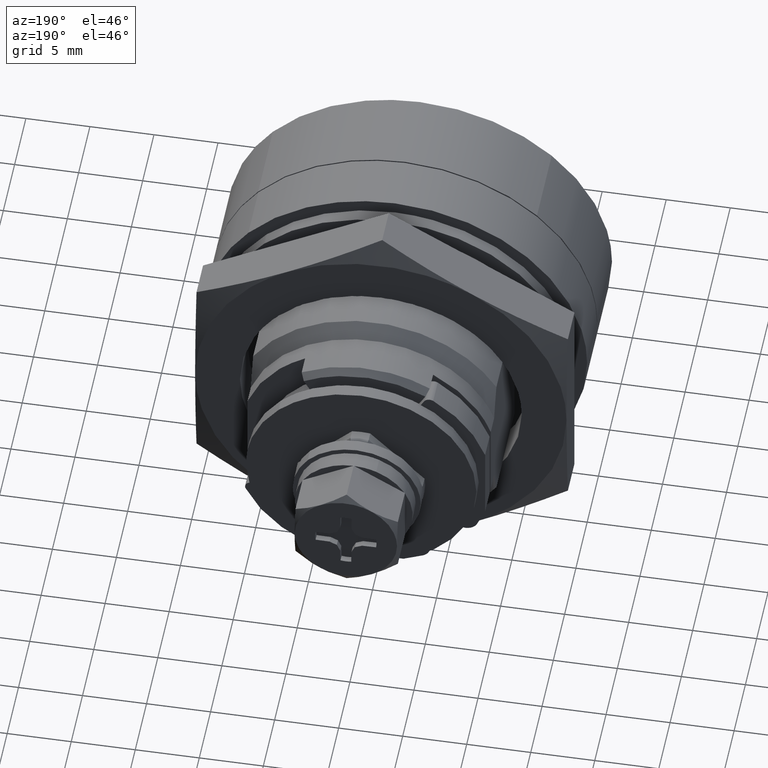
[diagram: clean part render]
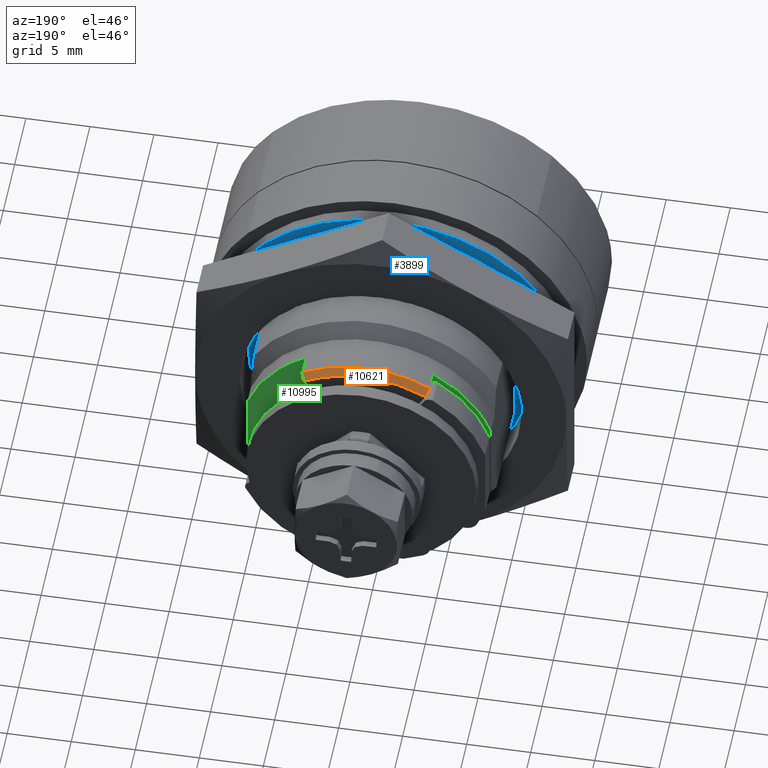
[diagram: same view with three faces highlighted in distinct colors, each labeled with its STEP entity id]
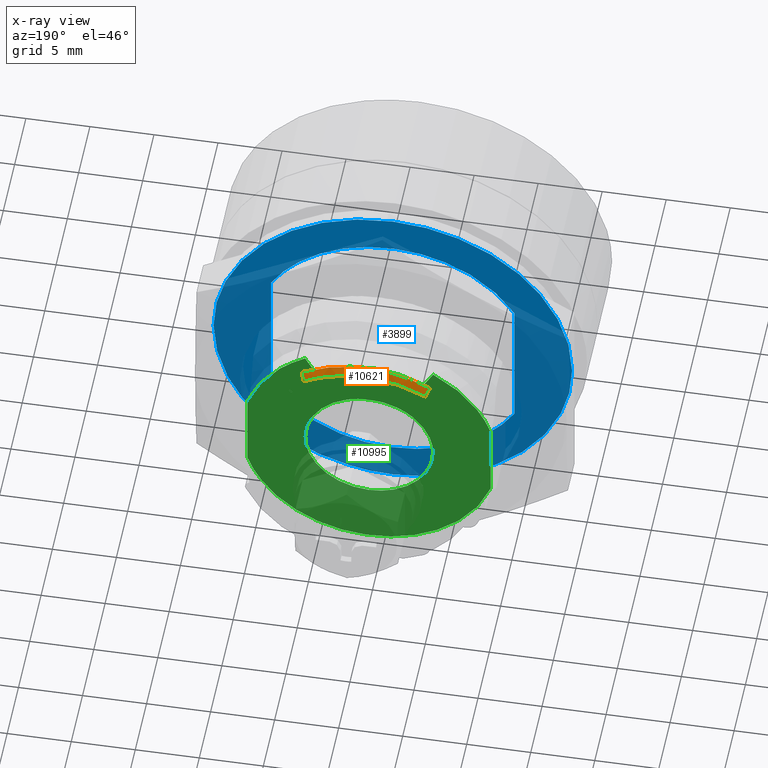
[diagram: x-ray of the same camera — body ghosted, the three highlighted faces saturated]
A machine part, auxiliary view with three faces highlighted in distinct colors.
The next image is the same camera in x-ray (body ghosted, the three faces saturated) — at least one of them is partly hidden behind the body in this view.
Their STEP definitions:

[orange] entity #10621 — the highlighted face is a freeform B-spline surface patch.
#10563=CARTESIAN_POINT('',(13.512500020831270,4.957205511022440,8.089423303067742));
#10564=CARTESIAN_POINT('',(12.987186645397371,5.231681017260369,8.537326572630690));
#10565=CARTESIAN_POINT('',(13.512500020831270,-0.133347215498947,11.208918362807330));
#10566=CARTESIAN_POINT('',(12.987186645397378,-0.140730517320528,11.829544950744896));
#10567=CARTESIAN_POINT('',(13.512500020831263,-5.148247420598412,7.969203495395789));
#10568=CARTESIAN_POINT('',(12.987186645397379,-5.433300726107910,8.410450314566027));
#10576=(BOUNDED_SURFACE()B_SPLINE_SURFACE(1,2,((#10563,#10565,#10567),(#10564,#10566,#10568)),.UNSPECIFIED.,.F.,.F.,.U.)B_SPLINE_SURFACE_WITH_KNOTS((2,2),(3,3),(0.0,1.0),(0.0,11.553177452123631),.UNSPECIFIED.)GEOMETRIC_REPRESENTATION_ITEM()RATIONAL_B_SPLINE_SURFACE(((1.0,0.842884117493694,0.991792997132270),(1.0,0.842884117493694,0.991792997132270)))REPRESENTATION_ITEM('')SURFACE());
#10577=CARTESIAN_POINT('',(12.999999166749420,4.999999999999941,8.660255000000001));
#10578=VERTEX_POINT('',#10577);
#10579=CARTESIAN_POINT('',(13.500000000000000,4.749999712459190,8.227241501964370));
#10580=VERTEX_POINT('',#10579);
#10581=CARTESIAN_POINT('',(12.999999166749420,4.999999999999941,8.660255000000001));
#10582=CARTESIAN_POINT('',(13.500000000000000,4.749999712459190,8.227241501964370));
#10583=QUASI_UNIFORM_CURVE('',1,(#10581,#10582),.UNSPECIFIED.,.F.,.U.);
#10584=EDGE_CURVE('',#10578,#10580,#10583,.T.);
#10585=ORIENTED_EDGE('',*,*,#10584,.F.);
#10586=CARTESIAN_POINT('',(13.0,-5.0,8.660255000000001));
#10587=VERTEX_POINT('',#10586);
#10588=CARTESIAN_POINT('',(13.0,-5.0,8.660255000000001));
#10589=CARTESIAN_POINT('',(12.999999946871130,-4.362390484779434,9.028532227890770));
#10590=CARTESIAN_POINT('',(12.999999861017249,-3.332041040728109,9.479967984549850));
#10591=CARTESIAN_POINT('',(12.999999721920400,-1.662713859330451,9.898128785327540));
#10592=CARTESIAN_POINT('',(12.999999597039841,-0.163996937141938,10.045742347520040));
#10593=CARTESIAN_POINT('',(12.999999449247300,1.609687027579386,9.922226109286934));
#10594=CARTESIAN_POINT('',(12.999999305282490,3.337443057604586,9.489431728402424));
#10595=CARTESIAN_POINT('',(12.999999210040761,4.480447110213335,8.960272841745853));
#10596=CARTESIAN_POINT('',(12.999999166749420,4.999999999999941,8.660255000000001));
#10597=B_SPLINE_CURVE_WITH_KNOTS('',3,(#10588,#10589,#10590,#10591,#10592,#10593,#10594,#10595,#10596),.UNSPECIFIED.,.F.,.U.,(4,1,1,1,1,1,4),(0.000000039140858,2.208933845172972,3.354315387199089,5.154216497384646,6.708627440352501,8.672137927015514,10.472004548909220),.UNSPECIFIED.);
#10598=EDGE_CURVE('',#10587,#10578,#10597,.T.);
#10599=ORIENTED_EDGE('',*,*,#10598,.F.);
#10600=CARTESIAN_POINT('',(13.500000000000000,-4.749999712459190,8.227241501964370));
#10601=VERTEX_POINT('',#10600);
#10602=CARTESIAN_POINT('',(13.500000000000000,-4.749999712459190,8.227241501964370));
#10603=CARTESIAN_POINT('',(13.0,-5.0,8.660255000000001));
#10604=QUASI_UNIFORM_CURVE('',1,(#10602,#10603),.UNSPECIFIED.,.F.,.U.);
#10605=EDGE_CURVE('',#10601,#10587,#10604,.T.);
#10606=ORIENTED_EDGE('',*,*,#10605,.F.);
#10607=CARTESIAN_POINT('',(13.500000000000000,4.749999712459190,8.227241501964370));
#10608=CARTESIAN_POINT('',(13.500000000000020,4.278859603590554,8.499301563133113));
#10609=CARTESIAN_POINT('',(13.499999999999970,3.219009399061166,8.995235362815221));
#10610=CARTESIAN_POINT('',(13.500000000000011,1.631451222690420,9.406784932495414));
#10611=CARTESIAN_POINT('',(13.500000000000000,0.207445134248038,9.523442174947810));
#10612=CARTESIAN_POINT('',(13.499999999999970,-1.140267584007029,9.462773706457563));
#10613=CARTESIAN_POINT('',(13.500000000000041,-2.801925865674454,9.153513680000804));
#10614=CARTESIAN_POINT('',(13.499999999999989,-4.054557876971956,8.628983088385827));
#10615=CARTESIAN_POINT('',(13.500000000000000,-4.749999712459190,8.227241501964370));
#10616=B_SPLINE_CURVE_WITH_KNOTS('',3,(#10607,#10608,#10609,#10610,#10611,#10612,#10613,#10614,#10615),.UNSPECIFIED.,.F.,.U.,(4,1,1,1,1,1,4),(0.000000039644926,1.632149737307779,3.497496127390782,4.896507153602273,5.906854646231986,7.539025593919737,9.948403816216571),.UNSPECIFIED.);
#10617=EDGE_CURVE('',#10580,#10601,#10616,.T.);
#10618=ORIENTED_EDGE('',*,*,#10617,.F.);
#10619=EDGE_LOOP('',(#10585,#10599,#10606,#10618));
#10620=FACE_OUTER_BOUND('',#10619,.T.);
#10621=ADVANCED_FACE('',(#10620),#10576,.T.);

[blue] entity #3899 — the highlighted face is a freeform B-spline surface patch.
#3572=CARTESIAN_POINT('',(1.0,-10.033113322143191,9.764047662325478));
#3573=VERTEX_POINT('',#3572);
#3579=CARTESIAN_POINT('',(1.0,0.0,14.0));
#3580=VERTEX_POINT('',#3579);
#3581=CARTESIAN_POINT('',(1.0,0.0,14.0));
#3582=CARTESIAN_POINT('',(0.999999999999998,-0.932162213923800,14.000120978008010));
#3583=CARTESIAN_POINT('',(1.000000000000003,-2.679908853745925,13.824800352395700));
#3584=CARTESIAN_POINT('',(0.999999999999999,-4.839282767041753,13.187115654609279));
#3585=CARTESIAN_POINT('',(0.999999999999991,-6.723956443759519,12.328264080142530));
#3586=CARTESIAN_POINT('',(1.000000000000026,-8.405853788298620,11.269603941702030));
#3587=CARTESIAN_POINT('',(0.999999999999967,-9.525236263493881,10.285969117467090));
#3588=CARTESIAN_POINT('',(1.0,-10.033113322143191,9.764047662325478));
#3589=B_SPLINE_CURVE_WITH_KNOTS('',3,(#3581,#3582,#3583,#3584,#3585,#3586,#3587,#3588),.UNSPECIFIED.,.F.,.U.,(4,1,1,1,1,4),(0.000000017273669,2.796464169346068,5.243384892846337,6.728980375647280,9.001119998070468,11.185856314690289),.UNSPECIFIED.);
#3590=EDGE_CURVE('',#3580,#3573,#3589,.T.);
#3592=CARTESIAN_POINT('',(1.0,13.999999999999920,0.000001473811498));
#3593=VERTEX_POINT('',#3592);
#3594=CARTESIAN_POINT('',(1.0,13.999999999999920,0.000001473811498));
#3595=CARTESIAN_POINT('',(1.000000000000003,14.000155339966581,0.944948539295219));
#3596=CARTESIAN_POINT('',(1.0,13.854448597072890,2.376592979026281));
#3597=CARTESIAN_POINT('',(1.000000000000000,13.312738428001561,4.457748100641723));
#3598=CARTESIAN_POINT('',(1.000000000000001,12.506951795350471,6.455269624414581));
#3599=CARTESIAN_POINT('',(1.000000000000005,11.250409042083760,8.452991470220155));
#3600=CARTESIAN_POINT('',(0.999999999999983,9.553592419132720,10.325136401241179));
#3601=CARTESIAN_POINT('',(1.000000000000028,7.766501483451125,11.728635705671349));
#3602=CARTESIAN_POINT('',(0.999999999999945,5.646458972697118,12.878586513292030));
#3603=CARTESIAN_POINT('',(1.000000000000036,3.121017344988079,13.756102524001751));
#3604=CARTESIAN_POINT('',(0.999999999999985,1.145402188599353,14.000315658379661));
#3605=CARTESIAN_POINT('',(1.0,0.0,14.0));
#3606=B_SPLINE_CURVE_WITH_KNOTS('',3,(#3594,#3595,#3596,#3597,#3598,#3599,#3600,#3601,#3602,#3603,#3604,#3605),.UNSPECIFIED.,.F.,.U.,(4,1,1,1,1,1,1,1,1,4),(0.000000065779709,2.834798876056681,4.295146155699893,6.442734124503716,9.277545508540845,11.339174796376790,14.002181175104839,16.063868589363569,18.555061566931641,21.991182242194309),.UNSPECIFIED.);
#3607=EDGE_CURVE('',#3593,#3580,#3606,.T.);
#3609=CARTESIAN_POINT('',(1.0,0.0,-14.0));
#3610=VERTEX_POINT('',#3609);
#3611=CARTESIAN_POINT('',(1.0,0.0,-14.0));
#3612=CARTESIAN_POINT('',(0.999999999999998,0.916302865983891,-14.000132009149871));
#3613=CARTESIAN_POINT('',(0.999999999999999,2.405228618996038,-13.853257125724481));
#3614=CARTESIAN_POINT('',(1.000000000000001,4.485798400080290,-13.304875845449850));
#3615=CARTESIAN_POINT('',(0.999999999999998,6.397732804719263,-12.519842230548671));
#3616=CARTESIAN_POINT('',(1.000000000000004,8.457521633252872,-11.259442074479260));
#3617=CARTESIAN_POINT('',(0.999999999999996,10.333552362244600,-9.559031294484635));
#3618=CARTESIAN_POINT('',(0.999999999999994,11.923179755528039,-7.483055039293303));
#3619=CARTESIAN_POINT('',(1.000000000000048,13.036151863318221,-5.305294948117187));
#3620=CARTESIAN_POINT('',(0.999999999999919,13.811607625990071,-2.748826651464827));
#3621=CARTESIAN_POINT('',(1.000000000000035,14.000170598258441,-1.002205044830865));
#3622=CARTESIAN_POINT('',(1.0,13.999999999999920,0.000001473811498));
#3623=B_SPLINE_CURVE_WITH_KNOTS('',3,(#3611,#3612,#3613,#3614,#3615,#3616,#3617,#3618,#3619,#3620,#3621,#3622),.UNSPECIFIED.,.F.,.U.,(4,1,1,1,1,1,1,1,1,4),(0.000000065638847,2.748877042713527,4.466952348833591,6.442734611169824,8.933943460286340,11.682779526148719,14.002182233378459,16.751099028347099,18.984593652064110,21.991183903526029),.UNSPECIFIED.);
#3624=EDGE_CURVE('',#3610,#3593,#3623,.T.);
#3626=CARTESIAN_POINT('',(1.0,-10.321882965782081,-9.458263176615411));
#3627=VERTEX_POINT('',#3626);
#3628=CARTESIAN_POINT('',(1.0,-10.321882965782081,-9.458263176615411));
#3629=CARTESIAN_POINT('',(1.000000000000000,-9.893081925880184,-9.926244097425666));
#3630=CARTESIAN_POINT('',(1.0,-8.905884203918697,-10.866443792743210));
#3631=CARTESIAN_POINT('',(1.000000000000005,-7.148200552689125,-12.108891673782651));
#3632=CARTESIAN_POINT('',(0.999999999999991,-5.212155774224623,-13.052142152881080));
#3633=CARTESIAN_POINT('',(0.999999999999995,-2.810837763881463,-13.798094617602050));
#3634=CARTESIAN_POINT('',(1.000000000000012,-1.088127899340507,-14.000218741464140));
#3635=CARTESIAN_POINT('',(1.0,0.0,-14.0));
#3636=B_SPLINE_CURVE_WITH_KNOTS('',3,(#3628,#3629,#3630,#3631,#3632,#3633,#3634,#3635),.UNSPECIFIED.,.F.,.U.,(4,1,1,1,1,4),(0.000000019495022,1.904180724488391,4.080396362522972,6.437953872810390,8.342141425290411,11.606459934353270),.UNSPECIFIED.);
#3637=EDGE_CURVE('',#3627,#3610,#3636,.T.);
#3731=CARTESIAN_POINT('',(1.0,-13.999999999999920,-0.000001473811388));
#3732=VERTEX_POINT('',#3731);
#3733=CARTESIAN_POINT('',(1.0,-13.999999999999920,-0.000001473811388));
#3734=CARTESIAN_POINT('',(1.0,-14.000055068961890,-0.784266284237521));
#3735=CARTESIAN_POINT('',(0.999999999999998,-13.872396584747980,-2.298677145018665));
#3736=CARTESIAN_POINT('',(1.000000000000002,-13.257498388614749,-4.745375654985548));
#3737=CARTESIAN_POINT('',(1.000000000000000,-12.130685225316990,-7.190974200629345));
#3738=CARTESIAN_POINT('',(0.999999999999999,-10.961437705674181,-8.760490726269543));
#3739=CARTESIAN_POINT('',(1.0,-10.321882965782081,-9.458263176615411));
#3740=B_SPLINE_CURVE_WITH_KNOTS('',3,(#3733,#3734,#3735,#3736,#3737,#3738,#3739),.UNSPECIFIED.,.F.,.U.,(4,1,1,1,4),(0.000000014346174,2.352788267116984,4.543323295025794,7.545149396132681,10.384722272376511),.UNSPECIFIED.);
#3741=EDGE_CURVE('',#3732,#3627,#3740,.T.);
#3743=CARTESIAN_POINT('',(1.0,-10.033113322143191,9.764047662325478));
#3744=CARTESIAN_POINT('',(1.0,-10.798710300092189,8.977756204627070));
#3745=CARTESIAN_POINT('',(0.999999999999999,-11.763899244442941,7.718444312120602));
#3746=CARTESIAN_POINT('',(1.000000000000004,-12.960251207521351,5.450628293587454));
#3747=CARTESIAN_POINT('',(0.999999999999985,-13.772954973551510,3.067068397658900));
#3748=CARTESIAN_POINT('',(1.000000000000017,-14.000201132656400,1.041152008421458));
#3749=CARTESIAN_POINT('',(1.0,-13.999999999999920,-0.000001473811388));
#3750=B_SPLINE_CURVE_WITH_KNOTS('',3,(#3743,#3744,#3745,#3746,#3747,#3748,#3749),.UNSPECIFIED.,.F.,.U.,(4,1,1,1,4),(0.000000016450036,3.292252207306952,4.727343621253853,7.681909845666260,10.805327973691670),.UNSPECIFIED.);
#3751=EDGE_CURVE('',#3573,#3732,#3750,.T.);
#3829=CARTESIAN_POINT('',(1.0,-15.398599945730480,15.398599945730570));
#3830=CARTESIAN_POINT('',(1.0,15.398600696749011,15.398599945730570));
#3831=CARTESIAN_POINT('',(1.0,-15.398599945730480,-15.398600696749090));
#3832=CARTESIAN_POINT('',(1.0,15.398600696749011,-15.398600696749090));
#3833=B_SPLINE_SURFACE_WITH_KNOTS('',1,1,((#3829,#3831),(#3830,#3832)),.UNSPECIFIED.,.F.,.F.,.U.,(2,2),(2,2),(0.0,30.797200642479488),(0.0,30.797200642479659),.UNSPECIFIED.);
#3834=ORIENTED_EDGE('',*,*,#3590,.T.);
#3835=ORIENTED_EDGE('',*,*,#3751,.T.);
#3836=ORIENTED_EDGE('',*,*,#3741,.T.);
#3837=ORIENTED_EDGE('',*,*,#3637,.T.);
#3838=ORIENTED_EDGE('',*,*,#3624,.T.);
#3839=ORIENTED_EDGE('',*,*,#3607,.T.);
#3840=EDGE_LOOP('',(#3834,#3835,#3836,#3837,#3838,#3839));
#3841=FACE_OUTER_BOUND('',#3840,.T.);
#3842=CARTESIAN_POINT('',(1.0,-9.500000000000000,-5.545268000000000));
#3843=VERTEX_POINT('',#3842);
#3844=CARTESIAN_POINT('',(1.0,9.500000000000000,-5.545268000000000));
#3845=VERTEX_POINT('',#3844);
#3846=CARTESIAN_POINT('',(1.0,-9.500000000000000,-5.545268000000000));
#3847=CARTESIAN_POINT('',(1.000000000000002,-9.033572679256190,-6.344920513536313));
#3848=CARTESIAN_POINT('',(0.999999999999999,-8.190229111248303,-7.442982485043294));
#3849=CARTESIAN_POINT('',(1.000000000000002,-6.672739764181601,-8.797964107195107));
#3850=CARTESIAN_POINT('',(1.000000000000004,-5.065924989507838,-9.846808998697759));
#3851=CARTESIAN_POINT('',(0.999999999999995,-3.363175178633680,-10.524303953498020));
#3852=CARTESIAN_POINT('',(1.000000000000015,-1.437435172313721,-10.954699779109330));
#3853=CARTESIAN_POINT('',(0.999999999999995,0.271736032139213,-11.059231490898441));
#3854=CARTESIAN_POINT('',(1.000000000000014,2.322348962783952,-10.807410651046990));
#3855=CARTESIAN_POINT('',(0.999999999999963,4.103246268114671,-10.269832411741660));
#3856=CARTESIAN_POINT('',(1.000000000000006,5.677345185783908,-9.465484814688580));
#3857=CARTESIAN_POINT('',(1.0,6.850332449605255,-8.637057434659097));
#3858=CARTESIAN_POINT('',(1.0,8.188756297359911,-7.442123533487865));
#3859=CARTESIAN_POINT('',(0.999999999999976,9.018515831745710,-6.370706162900042));
#3860=CARTESIAN_POINT('',(1.0,9.500000000000000,-5.545268000000000));
#3861=B_SPLINE_CURVE_WITH_KNOTS('',3,(#3846,#3847,#3848,#3849,#3850,#3851,#3852,#3853,#3854,#3855,#3856,#3857,#3858,#3859,#3860),.UNSPECIFIED.,.F.,.U.,(4,1,1,1,1,1,1,1,1,1,1,1,4),(0.000000131422464,2.777123955576471,4.120887988879950,6.091774590902070,8.510564310352153,9.585596158418252,12.004362057062650,13.616887964241570,15.766921438861059,17.558632834067460,18.902422542297010,20.067019612163559,22.933723611059929),.UNSPECIFIED.);
#3862=EDGE_CURVE('',#3843,#3845,#3861,.T.);
#3863=ORIENTED_EDGE('',*,*,#3862,.F.);
#3864=CARTESIAN_POINT('',(1.0,-9.500000000000000,5.545268999999901));
#3865=VERTEX_POINT('',#3864);
#3866=CARTESIAN_POINT('',(1.0,-9.500000000000000,-5.545268000000000));
#3867=CARTESIAN_POINT('',(1.0,-9.500000000000000,5.545268999999901));
#3868=QUASI_UNIFORM_CURVE('',1,(#3866,#3867),.UNSPECIFIED.,.F.,.U.);
#3869=EDGE_CURVE('',#3843,#3865,#3868,.T.);
#3870=ORIENTED_EDGE('',*,*,#3869,.T.);
#3871=CARTESIAN_POINT('',(1.0,9.500000000000000,5.545268999999910));
#3872=VERTEX_POINT('',#3871);
#3873=CARTESIAN_POINT('',(1.0,9.500000000000000,5.545268999999910));
#3874=CARTESIAN_POINT('',(0.999999999999999,9.183916405467025,6.086860852209282));
#3875=CARTESIAN_POINT('',(1.000000000000002,8.458768706887819,7.115775892904964));
#3876=CARTESIAN_POINT('',(0.999999999999997,7.018460482167646,8.557687515758241));
#3877=CARTESIAN_POINT('',(0.999999999999998,5.376576303898013,9.667768541831501));
#3878=CARTESIAN_POINT('',(1.000000000000002,3.564589094972722,10.457986393426880));
#3879=CARTESIAN_POINT('',(1.000000000000000,2.053925525182413,10.841128158831570));
#3880=CARTESIAN_POINT('',(0.999999999999994,0.420265101245397,11.028197610685600));
#3881=CARTESIAN_POINT('',(1.000000000000015,-1.198232573568793,10.988687662882819));
#3882=CARTESIAN_POINT('',(0.999999999999980,-2.873446277989908,10.656957111285120));
#3883=CARTESIAN_POINT('',(1.000000000000045,-4.397611498655573,10.121289372532280));
#3884=CARTESIAN_POINT('',(0.999999999999990,-5.675158153964046,9.461955251623937));
#3885=CARTESIAN_POINT('',(0.999999999999999,-6.924770298360112,8.587079877636453));
#3886=CARTESIAN_POINT('',(1.000000000000003,-8.250121984553752,7.374269517798248));
#3887=CARTESIAN_POINT('',(0.999999999999994,-9.078649444527079,6.267471065343213));
#3888=CARTESIAN_POINT('',(1.0,-9.500000000000000,5.545268999999901));
#3889=B_SPLINE_CURVE_WITH_KNOTS('',3,(#3873,#3874,#3875,#3876,#3877,#3878,#3879,#3880,#3881,#3882,#3883,#3884,#3885,#3886,#3887,#3888),.UNSPECIFIED.,.F.,.U.,(4,1,1,1,1,1,1,1,1,1,1,1,1,4),(0.000000131407123,1.881242699182391,3.762560071170800,6.091774228631120,7.793894760612051,9.675202439289436,10.750228603420570,12.721008469334530,14.512719771118180,15.856517586993551,17.558631789910599,18.812823857593511,20.425379118581589,22.933722247267841),.UNSPECIFIED.);
#3890=EDGE_CURVE('',#3872,#3865,#3889,.T.);
#3891=ORIENTED_EDGE('',*,*,#3890,.F.);
#3892=CARTESIAN_POINT('',(1.0,9.500000000000000,5.545268999999910));
#3893=CARTESIAN_POINT('',(1.0,9.500000000000000,-5.545268000000000));
#3894=QUASI_UNIFORM_CURVE('',1,(#3892,#3893),.UNSPECIFIED.,.F.,.U.);
#3895=EDGE_CURVE('',#3872,#3845,#3894,.T.);
#3896=ORIENTED_EDGE('',*,*,#3895,.T.);
#3897=EDGE_LOOP('',(#3863,#3870,#3891,#3896));
#3898=FACE_BOUND('',#3897,.T.);
#3899=ADVANCED_FACE('',(#3841,#3898),#3833,.F.);

[green] entity #10995 — the highlighted face is a freeform B-spline surface patch.
#9948=CARTESIAN_POINT('',(11.500000000000000,3.441772646466265,3.626871657323020));
#9949=VERTEX_POINT('',#9948);
#9955=CARTESIAN_POINT('',(11.500000000000000,0.0,5.0));
#9956=VERTEX_POINT('',#9955);
#9957=CARTESIAN_POINT('',(11.500000000000000,0.0,5.0));
#9958=CARTESIAN_POINT('',(11.499999999999980,0.474525336135953,5.000158191363772));
#9959=CARTESIAN_POINT('',(11.500000000000020,1.403697243309633,4.866762912747528));
#9960=CARTESIAN_POINT('',(11.499999999999970,2.569279003248723,4.344676622595108));
#9961=CARTESIAN_POINT('',(11.500000000000030,3.197981108416826,3.858244867072004));
#9962=CARTESIAN_POINT('',(11.500000000000000,3.441772646466265,3.626871657323020));
#9963=B_SPLINE_CURVE_WITH_KNOTS('',3,(#9957,#9958,#9959,#9960,#9961,#9962),.UNSPECIFIED.,.F.,.U.,(4,1,1,4),(0.000000029659713,1.423542959464170,2.787769562536685,3.796113233299189),.UNSPECIFIED.);
#9964=EDGE_CURVE('',#9956,#9949,#9963,.T.);
#9966=CARTESIAN_POINT('',(11.500000000000000,-4.999999999999853,0.000001214201519));
#9967=VERTEX_POINT('',#9966);
#9968=CARTESIAN_POINT('',(11.500000000000000,-4.999999999999853,0.000001214201519));
#9969=CARTESIAN_POINT('',(11.499999999999970,-5.000255371998605,0.511358127883209));
#9970=CARTESIAN_POINT('',(11.500000000000069,-4.870196465784423,1.349772966180596));
#9971=CARTESIAN_POINT('',(11.499999999999959,-4.416663923956669,2.407574985893156));
#9972=CARTESIAN_POINT('',(11.500000000000050,-3.875437852428514,3.206950443594423));
#9973=CARTESIAN_POINT('',(11.499999999999680,-3.163365157033864,3.919057008471555));
#9974=CARTESIAN_POINT('',(11.500000000001100,-2.300917131812858,4.480138684149350));
#9975=CARTESIAN_POINT('',(11.499999999998670,-1.227115608042208,4.894346298579282));
#9976=CARTESIAN_POINT('',(11.500000000000560,-0.449975730570964,5.000150065023252));
#9977=CARTESIAN_POINT('',(11.500000000000000,0.0,5.0));
#9978=B_SPLINE_CURVE_WITH_KNOTS('',3,(#9968,#9969,#9970,#9971,#9972,#9973,#9974,#9975,#9976,#9977),.UNSPECIFIED.,.F.,.U.,(4,1,1,1,1,1,1,4),(0.000000118224075,1.533981919634321,2.515752772949222,3.436167582433113,4.417863431335558,5.522361858085223,6.504132696661494,7.854030230036708),.UNSPECIFIED.);
#9979=EDGE_CURVE('',#9967,#9956,#9978,.T.);
#9981=CARTESIAN_POINT('',(11.500000000000000,0.0,-5.0));
#9982=VERTEX_POINT('',#9981);
#9983=CARTESIAN_POINT('',(11.500000000000000,0.0,-5.0));
#9984=CARTESIAN_POINT('',(11.500000000000020,-0.531828993373877,-5.000320084578477));
#9985=CARTESIAN_POINT('',(11.499999999999980,-1.308827591731734,-4.874770661308419));
#9986=CARTESIAN_POINT('',(11.500000000000060,-2.464702977217022,-4.396064548255171));
#9987=CARTESIAN_POINT('',(11.499999999999931,-3.346672427658147,-3.782978780020194));
#9988=CARTESIAN_POINT('',(11.500000000000041,-4.144757483362538,-2.869029530255042));
#9989=CARTESIAN_POINT('',(11.499999999999829,-4.635688426667257,-1.963993734352304));
#9990=CARTESIAN_POINT('',(11.500000000000149,-4.933581270623139,-0.981716848642209));
#9991=CARTESIAN_POINT('',(11.499999999999851,-5.000054829736798,-0.347700986638291));
#9992=CARTESIAN_POINT('',(11.500000000000000,-4.999999999999853,0.000001214201519));
#9993=B_SPLINE_CURVE_WITH_KNOTS('',3,(#9983,#9984,#9985,#9986,#9987,#9988,#9989,#9990,#9991,#9992),.UNSPECIFIED.,.F.,.U.,(4,1,1,1,1,1,1,4),(0.000000117801759,1.595350107989877,2.331670619865778,3.742940218783045,4.786030428282894,5.951884436358681,6.810933543168770,7.854031598733377),.UNSPECIFIED.);
#9994=EDGE_CURVE('',#9982,#9967,#9993,.T.);
#9996=CARTESIAN_POINT('',(11.500000000000000,3.817778443261016,-3.228710385206746));
#9997=VERTEX_POINT('',#9996);
#9998=CARTESIAN_POINT('',(11.500000000000000,3.817778443261016,-3.228710385206746));
#9999=CARTESIAN_POINT('',(11.499999999999989,3.540279409153054,-3.557042155850508));
#10000=CARTESIAN_POINT('',(11.500000000000011,2.950407959579386,-4.095173883160920));
#10001=CARTESIAN_POINT('',(11.500000000000000,1.953021545379901,-4.643035461701794));
#10002=CARTESIAN_POINT('',(11.500000000000020,0.972874208789859,-4.937461694726979));
#10003=CARTESIAN_POINT('',(11.499999999999989,0.316750923839284,-5.000027322900895));
#10004=CARTESIAN_POINT('',(11.500000000000000,0.0,-5.0));
#10005=B_SPLINE_CURVE_WITH_KNOTS('',3,(#9998,#9999,#10000,#10001,#10002,#10003,#10004),.UNSPECIFIED.,.F.,.U.,(4,1,1,1,4),(0.000000038811992,1.289641379076515,2.375637005749796,3.393783139673539,4.344041596621822),.UNSPECIFIED.);
#10006=EDGE_CURVE('',#9997,#9982,#10005,.T.);
#10032=CARTESIAN_POINT('',(11.500000000000000,4.999999999999852,-0.000001214201427));
#10033=VERTEX_POINT('',#10032);
#10034=CARTESIAN_POINT('',(11.500000000000000,4.999999999999852,-0.000001214201427));
#10035=CARTESIAN_POINT('',(11.499999999999980,5.000037875766362,-0.329063402920008));
#10036=CARTESIAN_POINT('',(11.500000000000041,4.932994678365725,-1.005450740370555));
#10037=CARTESIAN_POINT('',(11.499999999999970,4.583593166583668,-2.128724686100091));
#10038=CARTESIAN_POINT('',(11.500000000000060,4.136690866282561,-2.851949430412956));
#10039=CARTESIAN_POINT('',(11.500000000000000,3.817778443261016,-3.228710385206746));
#10040=B_SPLINE_CURVE_WITH_KNOTS('',3,(#10034,#10035,#10036,#10037,#10038,#10039),.UNSPECIFIED.,.F.,.U.,(4,1,1,4),(0.000000022733122,0.987186533331765,2.029211777949217,3.509990005538292),.UNSPECIFIED.);
#10041=EDGE_CURVE('',#10033,#9997,#10040,.T.);
#10043=CARTESIAN_POINT('',(11.500000000000000,3.441772646466265,3.626871657323020));
#10044=CARTESIAN_POINT('',(11.499999999999980,3.840573711565896,3.248803249858823));
#10045=CARTESIAN_POINT('',(11.500000000000080,4.446984804116302,2.444984155913548));
#10046=CARTESIAN_POINT('',(11.499999999999920,4.913142404201657,1.162418736606113));
#10047=CARTESIAN_POINT('',(11.500000000000069,5.000031814451270,0.359287063703669));
#10048=CARTESIAN_POINT('',(11.500000000000000,4.999999999999852,-0.000001214201427));
#10049=B_SPLINE_CURVE_WITH_KNOTS('',3,(#10043,#10044,#10045,#10046,#10047,#10048),.UNSPECIFIED.,.F.,.U.,(4,1,1,4),(0.000000031835858,1.648535822411251,2.980033176530869,4.057918821409603),.UNSPECIFIED.);
#10050=EDGE_CURVE('',#9949,#10033,#10049,.T.);
#10432=CARTESIAN_POINT('',(11.500000000000000,-9.500000000000000,-3.122498999199205));
#10433=VERTEX_POINT('',#10432);
#10439=CARTESIAN_POINT('',(11.500000000000000,-9.500000000000000,3.122498999199205));
#10440=VERTEX_POINT('',#10439);
#10441=CARTESIAN_POINT('',(11.500000000000000,-9.500000000000000,-3.122498999199205));
#10442=CARTESIAN_POINT('',(11.500000000000000,-9.500000000000000,3.122498999199205));
#10443=QUASI_UNIFORM_CURVE('',1,(#10441,#10442),.UNSPECIFIED.,.F.,.U.);
#10444=EDGE_CURVE('',#10433,#10440,#10443,.T.);
#10519=CARTESIAN_POINT('',(11.500000000000000,9.500000000000000,3.122498999199205));
#10520=VERTEX_POINT('',#10519);
#10526=CARTESIAN_POINT('',(11.500000000000000,9.500000000000000,-3.122498999199205));
#10527=VERTEX_POINT('',#10526);
#10528=CARTESIAN_POINT('',(11.500000000000000,9.500000000000000,-3.122498999199205));
#10529=CARTESIAN_POINT('',(11.500000000000000,9.500000000000000,3.122498999199205));
#10530=QUASI_UNIFORM_CURVE('',1,(#10528,#10529),.UNSPECIFIED.,.F.,.U.);
#10531=EDGE_CURVE('',#10527,#10520,#10530,.T.);
#10671=CARTESIAN_POINT('',(11.500000000000000,4.249999999999895,7.361215999999811));
#10672=VERTEX_POINT('',#10671);
#10673=CARTESIAN_POINT('',(11.500000000000000,-4.249999999999890,7.361215999999811));
#10674=VERTEX_POINT('',#10673);
#10675=CARTESIAN_POINT('',(11.500000000000000,4.249999999999895,7.361215999999811));
#10676=CARTESIAN_POINT('',(11.500000000000011,3.667904854934913,7.697470865135333));
#10677=CARTESIAN_POINT('',(11.500000000000000,2.573578024358010,8.166285544392171));
#10678=CARTESIAN_POINT('',(11.500000000000020,1.021348508889880,8.474987194281498));
#10679=CARTESIAN_POINT('',(11.499999999999989,-0.580896832384560,8.534164557743466));
#10680=CARTESIAN_POINT('',(11.500000000000000,-2.357524429898124,8.255693072978140));
#10681=CARTESIAN_POINT('',(11.500000000000000,-3.647829518215250,7.709056917343174));
#10682=CARTESIAN_POINT('',(11.500000000000000,-4.249999999999890,7.361215999999811));
#10683=B_SPLINE_CURVE_WITH_KNOTS('',3,(#10675,#10676,#10677,#10678,#10679,#10680,#10681,#10682),.UNSPECIFIED.,.F.,.U.,(4,1,1,1,1,4),(0.000000040251068,2.016676778201520,3.546589396518241,4.728744650326170,6.814985292054367,8.901204002346420),.UNSPECIFIED.);
#10684=EDGE_CURVE('',#10672,#10674,#10683,.T.);
#10705=CARTESIAN_POINT('',(11.500000000000000,5.0,8.660255000000001));
#10706=VERTEX_POINT('',#10705);
#10715=CARTESIAN_POINT('',(11.500000000000000,5.0,8.660255000000001));
#10716=CARTESIAN_POINT('',(11.500000000000000,4.249999999999895,7.361215999999811));
#10717=QUASI_UNIFORM_CURVE('',1,(#10715,#10716),.UNSPECIFIED.,.F.,.U.);
#10718=EDGE_CURVE('',#10706,#10672,#10717,.T.);
#10730=CARTESIAN_POINT('',(11.500000000000000,-5.0,8.660255000000001));
#10731=VERTEX_POINT('',#10730);
#10737=CARTESIAN_POINT('',(11.500000000000000,-4.249999999999890,7.361215999999811));
#10738=CARTESIAN_POINT('',(11.500000000000000,-5.0,8.660255000000001));
#10739=QUASI_UNIFORM_CURVE('',1,(#10737,#10738),.UNSPECIFIED.,.F.,.U.);
#10740=EDGE_CURVE('',#10674,#10731,#10739,.T.);
#10924=CARTESIAN_POINT('',(11.500000000000000,-9.500000000000000,3.122498999199205));
#10925=CARTESIAN_POINT('',(11.500000000000020,-9.227330968190785,3.952957839734498));
#10926=CARTESIAN_POINT('',(11.499999999999931,-8.611778926846109,5.230544917279418));
#10927=CARTESIAN_POINT('',(11.500000000000060,-7.467001252483647,6.706719567946424));
#10928=CARTESIAN_POINT('',(11.499999999999890,-6.338250134314808,7.786026979363173));
#10929=CARTESIAN_POINT('',(11.500000000000030,-5.493684904643152,8.375280607560335));
#10930=CARTESIAN_POINT('',(11.500000000000000,-5.0,8.660255000000001));
#10931=B_SPLINE_CURVE_WITH_KNOTS('',3,(#10924,#10925,#10926,#10927,#10928,#10929,#10930),.UNSPECIFIED.,.F.,.U.,(4,1,1,1,4),(0.000000013299514,2.622149590597871,4.218225293884691,5.586315386017812,7.296411411484352),.UNSPECIFIED.);
#10932=EDGE_CURVE('',#10440,#10731,#10931,.T.);
#10937=CARTESIAN_POINT('',(11.500000000000000,5.0,8.660255000000001));
#10938=CARTESIAN_POINT('',(11.500000000000011,5.625375836279290,8.299341788443226));
#10939=CARTESIAN_POINT('',(11.500000000000000,6.766481143916483,7.463757734613496));
#10940=CARTESIAN_POINT('',(11.499999999999989,8.012017877724794,6.066379158506550));
#10941=CARTESIAN_POINT('',(11.500000000000050,8.918038011104391,4.611288808170523));
#10942=CARTESIAN_POINT('',(11.499999999999970,9.322052108557445,3.664042769002616));
#10943=CARTESIAN_POINT('',(11.500000000000000,9.500000000000000,3.122498999199205));
#10944=B_SPLINE_CURVE_WITH_KNOTS('',3,(#10937,#10938,#10939,#10940,#10941,#10942,#10943),.UNSPECIFIED.,.F.,.U.,(4,1,1,1,4),(0.000000013299066,2.166125897939210,4.218225293884558,5.586315386017740,7.296411411484352),.UNSPECIFIED.);
#10945=EDGE_CURVE('',#10706,#10520,#10944,.T.);
#10952=CARTESIAN_POINT('',(11.500000000000000,-10.449049963174311,9.592334426579720));
#10953=CARTESIAN_POINT('',(11.500000000000000,-10.449049963174311,-10.932063410354379));
#10954=CARTESIAN_POINT('',(11.500000000000000,10.449050472794021,9.592334426579720));
#10955=CARTESIAN_POINT('',(11.500000000000000,10.449050472794021,-10.932063410354379));
#10956=B_SPLINE_SURFACE_WITH_KNOTS('',1,1,((#10952,#10954),(#10953,#10955)),.UNSPECIFIED.,.F.,.F.,.U.,(2,2),(2,2),(0.0,20.524397836934099),(0.0,20.898100435968342),.UNSPECIFIED.);
#10957=ORIENTED_EDGE('',*,*,#10444,.F.);
#10958=CARTESIAN_POINT('',(11.500000000000000,9.500000000000000,-3.122498999199205));
#10959=CARTESIAN_POINT('',(11.500000000000011,9.336967810325199,-3.618567991514623));
#10960=CARTESIAN_POINT('',(11.500000000000000,8.882517757716785,-4.705939595237970));
#10961=CARTESIAN_POINT('',(11.499999999999989,7.870562864431053,-6.277523795694165));
#10962=CARTESIAN_POINT('',(11.500000000000011,6.610660752281495,-7.569385344143716));
#10963=CARTESIAN_POINT('',(11.499999999999980,5.179732553519893,-8.605292182281609));
#10964=CARTESIAN_POINT('',(11.500000000000121,3.861391826966503,-9.266781967848845));
#10965=CARTESIAN_POINT('',(11.499999999999931,2.337407650598447,-9.760528847931946));
#10966=CARTESIAN_POINT('',(11.499999999999989,0.818822680356285,-10.015658960262320));
#10967=CARTESIAN_POINT('',(11.500000000000000,-0.753124227978410,-10.007930406009590));
#10968=CARTESIAN_POINT('',(11.500000000000020,-2.207791925247150,-9.785413364154474));
#10969=CARTESIAN_POINT('',(11.499999999999989,-3.839082159999010,-9.300923133901145));
#10970=CARTESIAN_POINT('',(11.500000000000020,-5.354932016493091,-8.512140348007977));
#10971=CARTESIAN_POINT('',(11.499999999999950,-6.800668138865229,-7.387956343223138));
#10972=CARTESIAN_POINT('',(11.500000000000121,-7.832018802262285,-6.288091149359224));
#10973=CARTESIAN_POINT('',(11.499999999999810,-8.817314857778465,-4.821880022253024));
#10974=CARTESIAN_POINT('',(11.499999999999931,-9.286100082512391,-3.773622141251245));
#10975=CARTESIAN_POINT('',(11.500000000000000,-9.500000000000000,-3.122498999199205));
#10976=B_SPLINE_CURVE_WITH_KNOTS('',3,(#10958,#10959,#10960,#10961,#10962,#10963,#10964,#10965,#10966,#10967,#10968,#10969,#10970,#10971,#10972,#10973,#10974,#10975),.UNSPECIFIED.,.F.,.U.,(4,1,1,1,1,1,1,1,1,1,1,1,1,1,1,4),(0.000000158251446,1.566529426541401,3.524710243764165,5.580837468254952,6.951574977846548,8.811856061445464,9.986781595588813,11.749183886071091,13.413585638972300,14.686404062048879,16.155057884880620,18.504882732091470,19.777711539891790,21.637993930031261,23.008764096901619,25.064818061131191),.UNSPECIFIED.);
#10977=EDGE_CURVE('',#10527,#10433,#10976,.T.);
#10978=ORIENTED_EDGE('',*,*,#10977,.F.);
#10979=ORIENTED_EDGE('',*,*,#10531,.T.);
#10980=ORIENTED_EDGE('',*,*,#10945,.F.);
#10981=ORIENTED_EDGE('',*,*,#10718,.T.);
#10982=ORIENTED_EDGE('',*,*,#10684,.T.);
#10983=ORIENTED_EDGE('',*,*,#10740,.T.);
#10984=ORIENTED_EDGE('',*,*,#10932,.F.);
#10985=EDGE_LOOP('',(#10957,#10978,#10979,#10980,#10981,#10982,#10983,#10984));
#10986=FACE_OUTER_BOUND('',#10985,.T.);
#10987=ORIENTED_EDGE('',*,*,#9994,.T.);
#10988=ORIENTED_EDGE('',*,*,#9979,.T.);
#10989=ORIENTED_EDGE('',*,*,#9964,.T.);
#10990=ORIENTED_EDGE('',*,*,#10050,.T.);
#10991=ORIENTED_EDGE('',*,*,#10041,.T.);
#10992=ORIENTED_EDGE('',*,*,#10006,.T.);
#10993=EDGE_LOOP('',(#10987,#10988,#10989,#10990,#10991,#10992));
#10994=FACE_BOUND('',#10993,.T.);
#10995=ADVANCED_FACE('',(#10986,#10994),#10956,.T.);